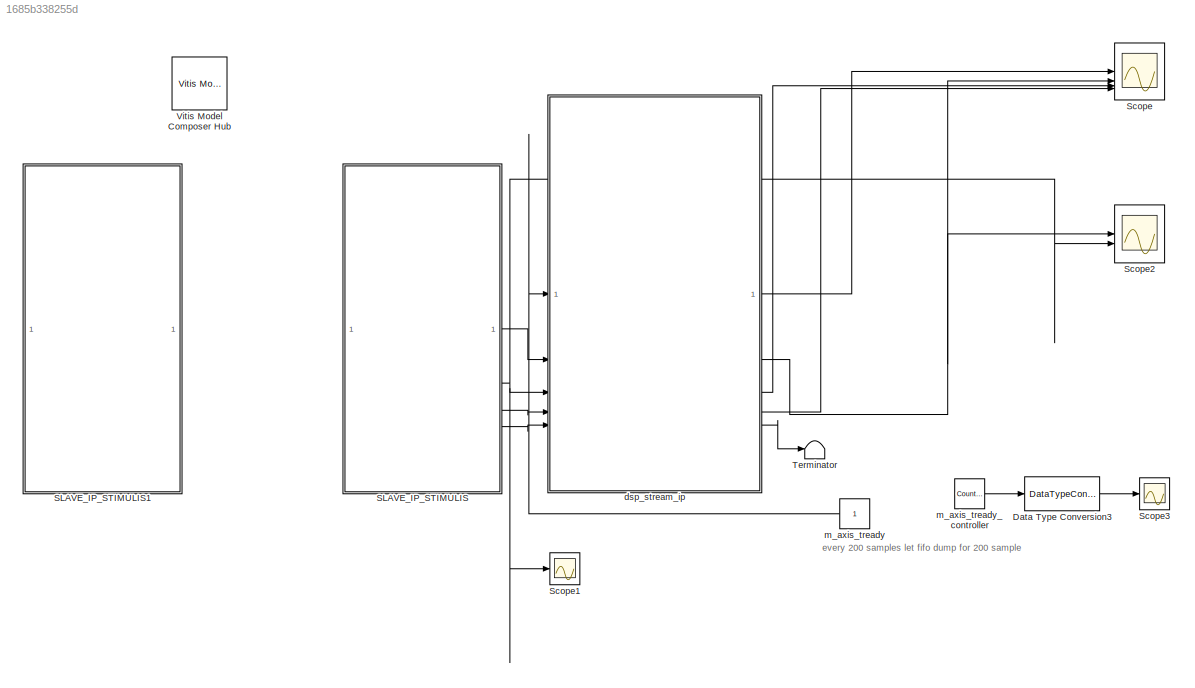
MODEL slx_1685b338255d
KIND model
CONFIG AbsTol = auto
CONFIG EnableMultiTasking = off
CONFIG FixedStep = auto
CONFIG MaxStep = auto
CONFIG MinStep = auto
CONFIG RelTol = 1e-3
CONFIG SampleTimeConstraint = Unconstrained
CONFIG SolverName = VariableStepAuto
CONFIG StartTime = 0.0
CONFIG StopTime = 1000/fs
BLOCK [DataTypeConversion] Data Type Conversion3
  OutDataTypeStr = fixdt(0,1)
  OutMax = 1
  OutMin = 0
  RndMeth = Floor
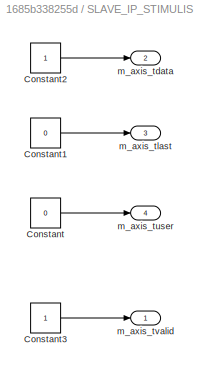
BLOCK [SubSystem] SLAVE_IP_STIMULIS
BLOCK [Constant] SLAVE_IP_STIMULIS/Constant
  Value = 0
BLOCK [Constant] SLAVE_IP_STIMULIS/Constant1
  Value = 0
BLOCK [Constant] SLAVE_IP_STIMULIS/Constant2
BLOCK [Constant] SLAVE_IP_STIMULIS/Constant3
BLOCK [Outport] SLAVE_IP_STIMULIS/m_axis_tdata
  Port = 2
  VectorParamsAs1DForOutWhenUnconnected = off
BLOCK [Outport] SLAVE_IP_STIMULIS/m_axis_tlast
  Port = 3
  VectorParamsAs1DForOutWhenUnconnected = off
BLOCK [Outport] SLAVE_IP_STIMULIS/m_axis_tuser
  Port = 4
  VectorParamsAs1DForOutWhenUnconnected = off
BLOCK [Outport] SLAVE_IP_STIMULIS/m_axis_tvalid
  VectorParamsAs1DForOutWhenUnconnected = off
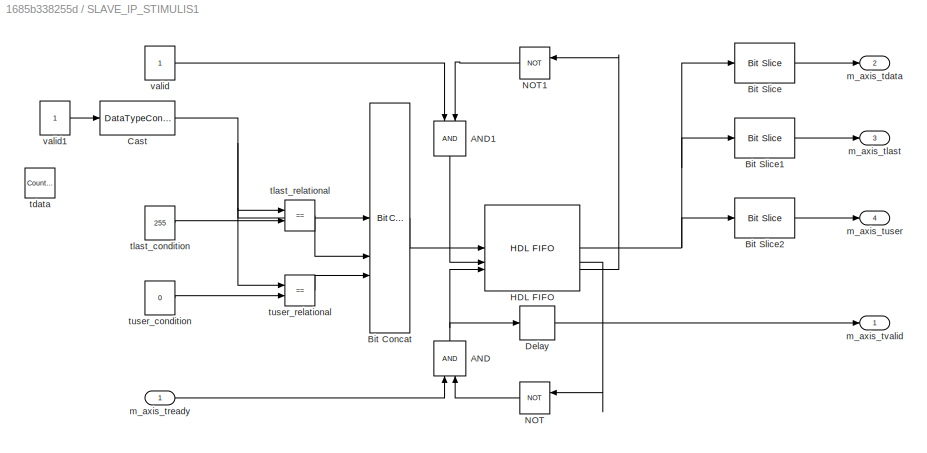
BLOCK [SubSystem] SLAVE_IP_STIMULIS1
  Commented = on
BLOCK [Logic] SLAVE_IP_STIMULIS1/AND
  AllPortsSameDT = off
  IconShape = distinctive
  NameLocation = right
  OutDataTypeStr = boolean
BLOCK [Logic] SLAVE_IP_STIMULIS1/AND1
  AllPortsSameDT = off
  IconShape = distinctive
  NameLocation = left
  OutDataTypeStr = boolean
BLOCK [Reference] SLAVE_IP_STIMULIS1/Bit Concat  REF=hdlsllib/Logic and Bit
Operations/Bit Concat
  SourceBlock = hdlsllib/Logic and Bit\nOperations/Bit Concat
  SourceType = Bit Concat
BLOCK [Reference] SLAVE_IP_STIMULIS1/Bit Slice  REF=hdlsllib/Logic and Bit
Operations/Bit Slice
  SourceBlock = hdlsllib/Logic and Bit\nOperations/Bit Slice
  SourceType = Bit Slice
BLOCK [Reference] SLAVE_IP_STIMULIS1/Bit Slice1  REF=hdlsllib/Logic and Bit
Operations/Bit Slice
  SourceBlock = hdlsllib/Logic and Bit\nOperations/Bit Slice
  SourceType = Bit Slice
BLOCK [Reference] SLAVE_IP_STIMULIS1/Bit Slice2  REF=hdlsllib/Logic and Bit
Operations/Bit Slice
  SourceBlock = hdlsllib/Logic and Bit\nOperations/Bit Slice
  SourceType = Bit Slice
BLOCK [DataTypeConversion] SLAVE_IP_STIMULIS1/Cast
  OutDataTypeStr = uint8
  RndMeth = Floor
  SaturateOnIntegerOverflow = off
BLOCK [Delay] SLAVE_IP_STIMULIS1/Delay
  DelayLength = 1
  InputPortMap = u0
BLOCK [Reference] SLAVE_IP_STIMULIS1/HDL FIFO  REF=hdlsllib/HDL RAMs/HDL FIFO
  SourceBlock = hdlsllib/HDL RAMs/HDL FIFO
  SourceType = HDL_FIFO
BLOCK [Logic] SLAVE_IP_STIMULIS1/NOT
  AllPortsSameDT = off
  IconShape = distinctive
  NameLocation = top
  Operator = NOT
  OutDataTypeStr = boolean
BLOCK [Logic] SLAVE_IP_STIMULIS1/NOT1
  AllPortsSameDT = off
  IconShape = distinctive
  NameLocation = top
  Operator = NOT
  OutDataTypeStr = boolean
BLOCK [Outport] SLAVE_IP_STIMULIS1/m_axis_tdata
  Port = 2
  VectorParamsAs1DForOutWhenUnconnected = off
BLOCK [Outport] SLAVE_IP_STIMULIS1/m_axis_tlast
  Port = 3
  VectorParamsAs1DForOutWhenUnconnected = off
BLOCK [Inport] SLAVE_IP_STIMULIS1/m_axis_tready
BLOCK [Outport] SLAVE_IP_STIMULIS1/m_axis_tuser
  Port = 4
  VectorParamsAs1DForOutWhenUnconnected = off
BLOCK [Outport] SLAVE_IP_STIMULIS1/m_axis_tvalid
  VectorParamsAs1DForOutWhenUnconnected = off
BLOCK [Reference] SLAVE_IP_STIMULIS1/tdata  REF=simulink/Sources/Counter
Limited
  Commented = on
  SourceBlock = simulink/Sources/Counter\nLimited
  SourceType = Counter Limited
BLOCK [Constant] SLAVE_IP_STIMULIS1/tlast_condition
  SampleTime = -1
  Value = 255
  VectorParams1D = off
BLOCK [RelationalOperator] SLAVE_IP_STIMULIS1/tlast_relational
  InputSameDT = off
  Operator = ==
  OutDataTypeStr = boolean
BLOCK [Constant] SLAVE_IP_STIMULIS1/tuser_condition
  SampleTime = -1
  Value = 0
  VectorParams1D = off
BLOCK [RelationalOperator] SLAVE_IP_STIMULIS1/tuser_relational
  InputSameDT = off
  Operator = ==
  OutDataTypeStr = boolean
BLOCK [Constant] SLAVE_IP_STIMULIS1/valid
  VectorParams1D = off
BLOCK [Constant] SLAVE_IP_STIMULIS1/valid1
  VectorParams1D = off
BLOCK [Scope] Scope
  Floating = off
  NumInputPorts = 4
  ScopeSpecificationString = Simulink.scopes.TimeScopeBlockCfg('CurrentConfiguration', extmgr.ConfigurationSet(extmgr.Configuration('Core','General UI',true),extmgr.Configuration('Core','Source UI',true),extmgr.Configuration('Sources','WiredSimulink',true),extmgr.Configuration('Visuals','Time Domain',true,'SerializedDisplays',{struct('MinYLimReal','0.9','MaxYLimReal','1.1','YLabelReal','','MinYLimMag','0','MaxYLimMag','10','L...<+6701ch>
BLOCK [Scope] Scope1
  Floating = off
  NumInputPorts = 1
  ScopeSpecificationString = Simulink.scopes.TimeScopeBlockCfg('CurrentConfiguration', extmgr.ConfigurationSet(extmgr.Configuration('Core','General UI',true),extmgr.Configuration('Core','Source UI',true),extmgr.Configuration('Sources','WiredSimulink',true,'DataLoggingVariableName','ScopeData1'),extmgr.Configuration('Visuals','Time Domain',true,'SerializedDisplays',{struct('MinYLimReal','-0.125','MaxYLimReal','1.125','YLabelRe...<+2232ch>
BLOCK [Scope] Scope2
  Floating = off
  NumInputPorts = 2
  ScopeSpecificationString = Simulink.scopes.TimeScopeBlockCfg('CurrentConfiguration', extmgr.ConfigurationSet(extmgr.Configuration('Core','General UI',true),extmgr.Configuration('Core','Source UI',true),extmgr.Configuration('Sources','WiredSimulink',true,'DataLoggingVariableName','ScopeData2'),extmgr.Configuration('Visuals','Time Domain',true,'SerializedDisplays',{struct('MinYLimReal','-1.24904','MaxYLimReal','1.24379','YLab...<+3688ch>
BLOCK [Scope] Scope3
  Floating = off
  NumInputPorts = 1
  ScopeSpecificationString = Simulink.scopes.TimeScopeBlockCfg('CurrentConfiguration', extmgr.ConfigurationSet(extmgr.Configuration('Core','General UI',true),extmgr.Configuration('Core','Source UI',true),extmgr.Configuration('Sources','WiredSimulink',true,'DataLoggingVariableName','ScopeData3'),extmgr.Configuration('Visuals','Time Domain',true,'SerializedDisplays',{struct('MinYLimReal','-0.125','MaxYLimReal','1.125','YLabelRe...<+1410ch>
BLOCK [Terminator] Terminator
BLOCK [Reference] Vitis Model Composer Hub  REF=vmcUtilities/Vitis Model Composer Hub
  SourceBlock = vmcUtilities/Vitis Model Composer Hub
  SourceType = VMC Hub
  Tag = genX
  UserDataPersistent = on
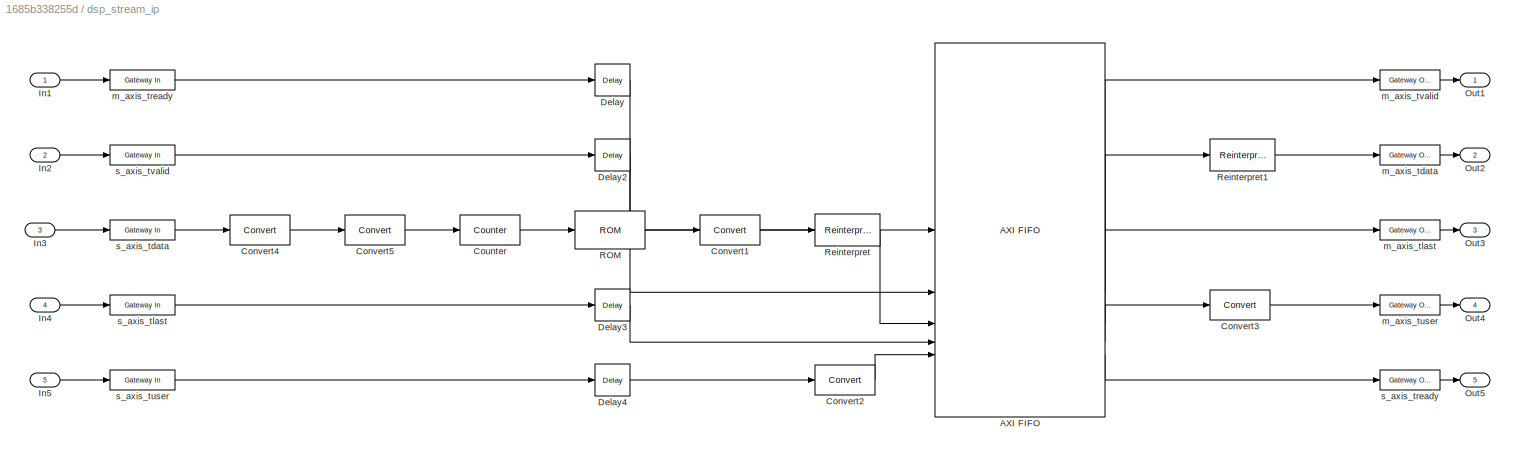
BLOCK [SubSystem] dsp_stream_ip
BLOCK [Reference] dsp_stream_ip/AXI FIFO  REF=hdlBasic/AXI FIFO
  SourceBlock = hdlBasic/AXI FIFO
  SourceType = AXI FIFO Block Block
BLOCK [Reference] dsp_stream_ip/Convert1  REF=hdlBasic/Convert
  SourceBlock = hdlBasic/Convert
  SourceType = Type Converter Block
BLOCK [Reference] dsp_stream_ip/Convert2  REF=hdlBasic/Convert
  SourceBlock = hdlBasic/Convert
  SourceType = Type Converter Block
BLOCK [Reference] dsp_stream_ip/Convert3  REF=hdlBasic/Convert
  SourceBlock = hdlBasic/Convert
  SourceType = Type Converter Block
BLOCK [Reference] dsp_stream_ip/Convert4  REF=hdlBasic/Convert
  SourceBlock = hdlBasic/Convert
  SourceType = Type Converter Block
BLOCK [Reference] dsp_stream_ip/Convert5  REF=hdlBasic/Convert
  SourceBlock = hdlBasic/Convert
  SourceType = Type Converter Block
BLOCK [Reference] dsp_stream_ip/Counter  REF=hdlBasic/Counter
  SourceBlock = hdlBasic/Counter
  SourceType = Counter Block
BLOCK [Reference] dsp_stream_ip/Delay  REF=hdlBasic/Delay
  SourceBlock = hdlBasic/Delay
  SourceType = Delay Block
BLOCK [Reference] dsp_stream_ip/Delay2  REF=hdlBasic/Delay
  SourceBlock = hdlBasic/Delay
  SourceType = Delay Block
BLOCK [Reference] dsp_stream_ip/Delay3  REF=hdlBasic/Delay
  SourceBlock = hdlBasic/Delay
  SourceType = Delay Block
BLOCK [Reference] dsp_stream_ip/Delay4  REF=hdlBasic/Delay
  SourceBlock = hdlBasic/Delay
  SourceType = Delay Block
BLOCK [Inport] dsp_stream_ip/In1
BLOCK [Inport] dsp_stream_ip/In2
  Port = 2
BLOCK [Inport] dsp_stream_ip/In3
  Port = 3
BLOCK [Inport] dsp_stream_ip/In4
  Port = 4
BLOCK [Inport] dsp_stream_ip/In5
  Port = 5
BLOCK [Outport] dsp_stream_ip/Out1
BLOCK [Outport] dsp_stream_ip/Out2
  Port = 2
BLOCK [Outport] dsp_stream_ip/Out3
  Port = 3
BLOCK [Outport] dsp_stream_ip/Out4
  Port = 4
BLOCK [Outport] dsp_stream_ip/Out5
  Port = 5
BLOCK [Reference] dsp_stream_ip/ROM  REF=hdlBasic/ROM
  SourceBlock = hdlBasic/ROM
  SourceType = Single Port Read-Only Memory Block
BLOCK [Reference] dsp_stream_ip/Reinterpret  REF=hdlBasic/Reinterpret
  SourceBlock = hdlBasic/Reinterpret
  SourceType = Type Reinterpreter Block
BLOCK [Reference] dsp_stream_ip/Reinterpret1  REF=hdlBasic/Reinterpret
  SourceBlock = hdlBasic/Reinterpret
  SourceType = Type Reinterpreter Block
BLOCK [Reference] dsp_stream_ip/m_axis_tdata  REF=hdlBasic/Gateway Out
  SourceBlock = hdlBasic/Gateway Out
  SourceType = Gateway Out Block
BLOCK [Reference] dsp_stream_ip/m_axis_tlast  REF=hdlBasic/Gateway Out
  SourceBlock = hdlBasic/Gateway Out
  SourceType = Gateway Out Block
BLOCK [Reference] dsp_stream_ip/m_axis_tready  REF=hdlBasic/Gateway In
  SourceBlock = hdlBasic/Gateway In
  SourceType = Gateway In Block
BLOCK [Reference] dsp_stream_ip/m_axis_tuser  REF=hdlBasic/Gateway Out
  SourceBlock = hdlBasic/Gateway Out
  SourceType = Gateway Out Block
BLOCK [Reference] dsp_stream_ip/m_axis_tvalid  REF=hdlBasic/Gateway Out
  SourceBlock = hdlBasic/Gateway Out
  SourceType = Gateway Out Block
BLOCK [Reference] dsp_stream_ip/s_axis_tdata  REF=hdlBasic/Gateway In
  SourceBlock = hdlBasic/Gateway In
  SourceType = Gateway In Block
BLOCK [Reference] dsp_stream_ip/s_axis_tlast  REF=hdlBasic/Gateway In
  SourceBlock = hdlBasic/Gateway In
  SourceType = Gateway In Block
BLOCK [Reference] dsp_stream_ip/s_axis_tready  REF=hdlBasic/Gateway Out
  SourceBlock = hdlBasic/Gateway Out
  SourceType = Gateway Out Block
BLOCK [Reference] dsp_stream_ip/s_axis_tuser  REF=hdlBasic/Gateway In
  SourceBlock = hdlBasic/Gateway In
  SourceType = Gateway In Block
BLOCK [Reference] dsp_stream_ip/s_axis_tvalid  REF=hdlBasic/Gateway In
  SourceBlock = hdlBasic/Gateway In
  SourceType = Gateway In Block
BLOCK [Constant] m_axis_tready
BLOCK [Reference] m_axis_tready_controller  REF=simulink/Sources/Counter
Limited
  SourceBlock = simulink/Sources/Counter\nLimited
  SourceType = Counter Limited
ANNOTATION (root): every 200 samples let fifo dump for 200 sample
LINE Data Type Conversion3:1 -> Scope3:1
LINE SLAVE_IP_STIMULIS/Constant1:1 -> SLAVE_IP_STIMULIS/m_axis_tlast:1
LINE SLAVE_IP_STIMULIS/Constant2:1 -> SLAVE_IP_STIMULIS/m_axis_tdata:1
LINE SLAVE_IP_STIMULIS/Constant3:1 -> SLAVE_IP_STIMULIS/m_axis_tvalid:1
LINE SLAVE_IP_STIMULIS/Constant:1 -> SLAVE_IP_STIMULIS/m_axis_tuser:1
LINE SLAVE_IP_STIMULIS1/AND1:1 -> SLAVE_IP_STIMULIS1/HDL FIFO:2
NET SLAVE_IP_STIMULIS1/AND:1 -> SLAVE_IP_STIMULIS1/Delay:1, SLAVE_IP_STIMULIS1/HDL FIFO:3
LINE SLAVE_IP_STIMULIS1/Bit Concat:1 -> SLAVE_IP_STIMULIS1/HDL FIFO:1
LINE SLAVE_IP_STIMULIS1/Bit Slice1:1 -> SLAVE_IP_STIMULIS1/m_axis_tlast:1
LINE SLAVE_IP_STIMULIS1/Bit Slice2:1 -> SLAVE_IP_STIMULIS1/m_axis_tuser:1
LINE SLAVE_IP_STIMULIS1/Bit Slice:1 -> SLAVE_IP_STIMULIS1/m_axis_tdata:1
NET SLAVE_IP_STIMULIS1/Cast:1 -> SLAVE_IP_STIMULIS1/Bit Concat:1, SLAVE_IP_STIMULIS1/tlast_relational:1, SLAVE_IP_STIMULIS1/tuser_relational:1
LINE SLAVE_IP_STIMULIS1/Delay:1 -> SLAVE_IP_STIMULIS1/m_axis_tvalid:1
NET SLAVE_IP_STIMULIS1/HDL FIFO:1 -> SLAVE_IP_STIMULIS1/Bit Slice1:1, SLAVE_IP_STIMULIS1/Bit Slice2:1, SLAVE_IP_STIMULIS1/Bit Slice:1
LINE SLAVE_IP_STIMULIS1/HDL FIFO:2 -> SLAVE_IP_STIMULIS1/NOT:1
LINE SLAVE_IP_STIMULIS1/HDL FIFO:3 -> SLAVE_IP_STIMULIS1/NOT1:1
LINE SLAVE_IP_STIMULIS1/NOT1:1 -> SLAVE_IP_STIMULIS1/AND1:2
LINE SLAVE_IP_STIMULIS1/NOT:1 -> SLAVE_IP_STIMULIS1/AND:2
LINE SLAVE_IP_STIMULIS1/m_axis_tready:1 -> SLAVE_IP_STIMULIS1/AND:1
LINE SLAVE_IP_STIMULIS1/tlast_condition:1 -> SLAVE_IP_STIMULIS1/tlast_relational:2
LINE SLAVE_IP_STIMULIS1/tlast_relational:1 -> SLAVE_IP_STIMULIS1/Bit Concat:2
LINE SLAVE_IP_STIMULIS1/tuser_condition:1 -> SLAVE_IP_STIMULIS1/tuser_relational:2
LINE SLAVE_IP_STIMULIS1/tuser_relational:1 -> SLAVE_IP_STIMULIS1/Bit Concat:3
LINE SLAVE_IP_STIMULIS1/valid1:1 -> SLAVE_IP_STIMULIS1/Cast:1
LINE SLAVE_IP_STIMULIS1/valid:1 -> SLAVE_IP_STIMULIS1/AND1:1
LINE SLAVE_IP_STIMULIS:1 -> dsp_stream_ip:2
NET SLAVE_IP_STIMULIS:2 -> Scope1:1, Scope2:2, dsp_stream_ip:3
LINE SLAVE_IP_STIMULIS:3 -> dsp_stream_ip:4
LINE SLAVE_IP_STIMULIS:4 -> dsp_stream_ip:5
LINE dsp_stream_ip/AXI FIFO:1 -> dsp_stream_ip/m_axis_tvalid:1
LINE dsp_stream_ip/AXI FIFO:2 -> dsp_stream_ip/Reinterpret1:1
LINE dsp_stream_ip/AXI FIFO:3 -> dsp_stream_ip/m_axis_tlast:1
LINE dsp_stream_ip/AXI FIFO:4 -> dsp_stream_ip/Convert3:1
LINE dsp_stream_ip/AXI FIFO:5 -> dsp_stream_ip/s_axis_tready:1
LINE dsp_stream_ip/Convert1:1 -> dsp_stream_ip/Reinterpret:1
LINE dsp_stream_ip/Convert2:1 -> dsp_stream_ip/AXI FIFO:5
LINE dsp_stream_ip/Convert3:1 -> dsp_stream_ip/m_axis_tuser:1
LINE dsp_stream_ip/Convert4:1 -> dsp_stream_ip/Convert5:1
LINE dsp_stream_ip/Convert5:1 -> dsp_stream_ip/Counter:1
LINE dsp_stream_ip/Counter:1 -> dsp_stream_ip/ROM:1
LINE dsp_stream_ip/Delay2:1 -> dsp_stream_ip/AXI FIFO:2
LINE dsp_stream_ip/Delay3:1 -> dsp_stream_ip/AXI FIFO:4
LINE dsp_stream_ip/Delay4:1 -> dsp_stream_ip/Convert2:1
LINE dsp_stream_ip/Delay:1 -> dsp_stream_ip/AXI FIFO:1
LINE dsp_stream_ip/In1:1 -> dsp_stream_ip/m_axis_tready:1
LINE dsp_stream_ip/In2:1 -> dsp_stream_ip/s_axis_tvalid:1
LINE dsp_stream_ip/In3:1 -> dsp_stream_ip/s_axis_tdata:1
LINE dsp_stream_ip/In4:1 -> dsp_stream_ip/s_axis_tlast:1
LINE dsp_stream_ip/In5:1 -> dsp_stream_ip/s_axis_tuser:1
LINE dsp_stream_ip/ROM:1 -> dsp_stream_ip/Convert1:1
LINE dsp_stream_ip/Reinterpret1:1 -> dsp_stream_ip/m_axis_tdata:1
LINE dsp_stream_ip/Reinterpret:1 -> dsp_stream_ip/AXI FIFO:3
LINE dsp_stream_ip/m_axis_tdata:1 -> dsp_stream_ip/Out2:1
LINE dsp_stream_ip/m_axis_tlast:1 -> dsp_stream_ip/Out3:1
LINE dsp_stream_ip/m_axis_tready:1 -> dsp_stream_ip/Delay:1
LINE dsp_stream_ip/m_axis_tuser:1 -> dsp_stream_ip/Out4:1
LINE dsp_stream_ip/m_axis_tvalid:1 -> dsp_stream_ip/Out1:1
LINE dsp_stream_ip/s_axis_tdata:1 -> dsp_stream_ip/Convert4:1
LINE dsp_stream_ip/s_axis_tlast:1 -> dsp_stream_ip/Delay3:1
LINE dsp_stream_ip/s_axis_tready:1 -> dsp_stream_ip/Out5:1
LINE dsp_stream_ip/s_axis_tuser:1 -> dsp_stream_ip/Delay4:1
LINE dsp_stream_ip/s_axis_tvalid:1 -> dsp_stream_ip/Delay2:1
LINE dsp_stream_ip:1 -> Scope:1
NET dsp_stream_ip:2 -> Scope2:1, Scope:2
LINE dsp_stream_ip:3 -> Scope:3
LINE dsp_stream_ip:4 -> Scope:4
LINE dsp_stream_ip:5 -> Terminator:1
LINE m_axis_tready:1 -> dsp_stream_ip:1
LINE m_axis_tready_controller:1 -> Data Type Conversion3:1
note: NET lines group one-source signal fan-out (src -> all destinations, sorted); 1:1 wires keep LINE
